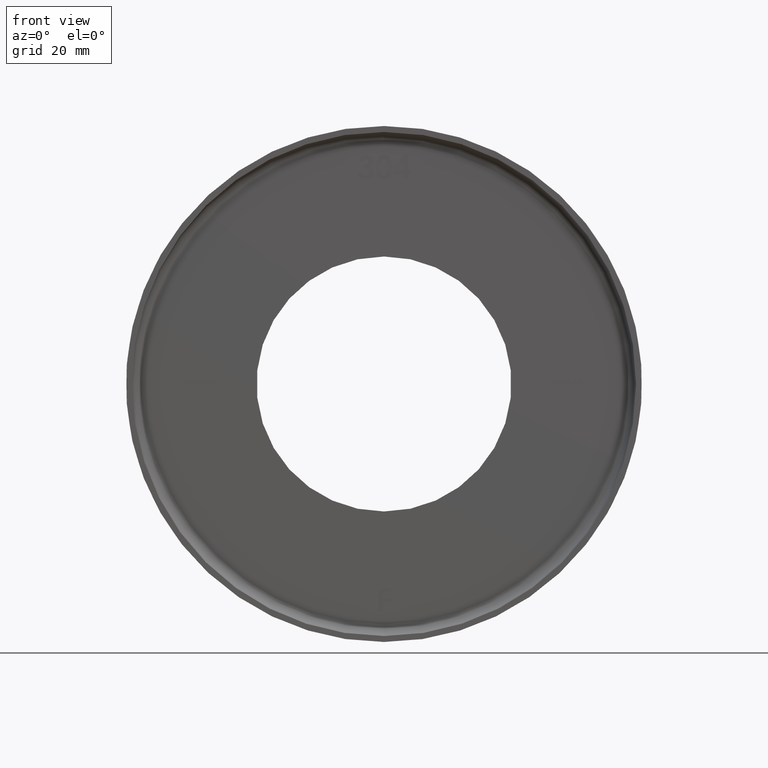
[diagram: clean part render]
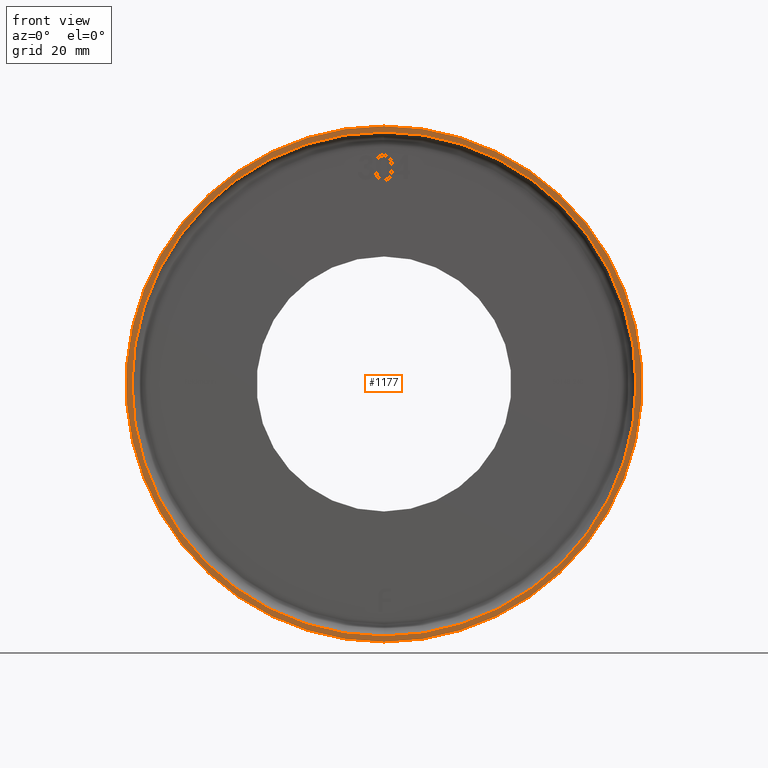
[diagram: same view with one face highlighted and labeled with its STEP entity id]
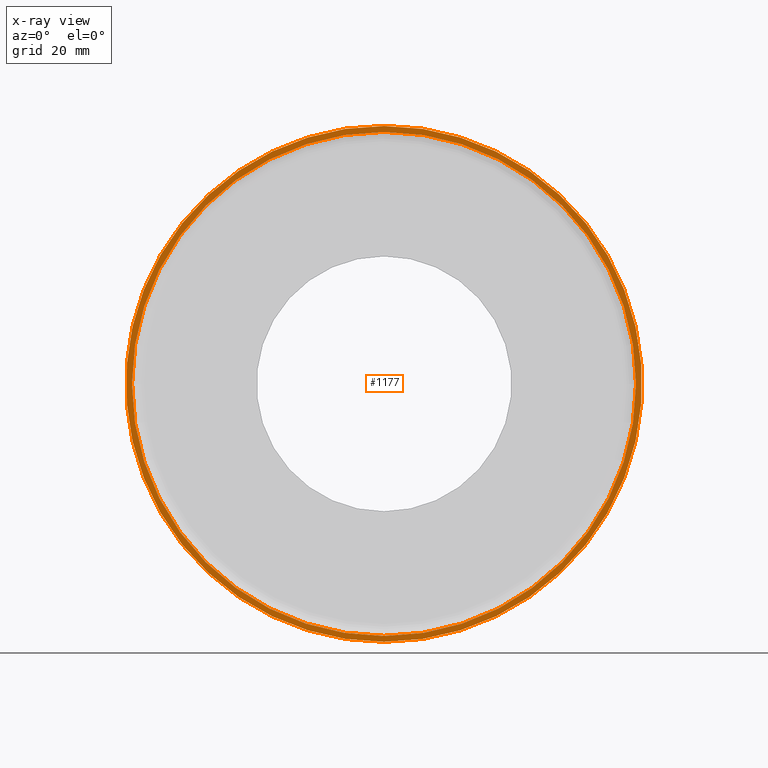
[diagram: x-ray of the same camera — body ghosted, the highlighted face saturated]
A machine part, front view. The second image highlights one B-rep face of the part: STEP entity #1177.
The next image is the same camera in x-ray: the body ghosted, the highlighted face saturated — about 0% of this face is hidden behind the body in this view.
In plain terms, the highlighted planar face has unit normal (0, -1, -0).
Its self-contained STEP definition (entity closure, byte-faithful):
#1177 = ADVANCED_FACE ( 'NONE', ( #12663, #10936 ), #5407, .T. ) ;
#2858 = AXIS2_PLACEMENT_3D ( 'NONE', #7783, #5459, #2999 ) ;
#2999 = DIRECTION ( 'NONE',  ( 0.000000000000000000, 0.000000000000000000, -1.000000000000000000 ) ) ;
#3377 = AXIS2_PLACEMENT_3D ( 'NONE', #13610, #11309, #13716 ) ;
#3752 = ORIENTED_EDGE ( 'NONE', *, *, #10366, .T. ) ;
#4119 = ORIENTED_EDGE ( 'NONE', *, *, #11313, .F. ) ;
#4429 = AXIS2_PLACEMENT_3D ( 'NONE', #7644, #14897, #5145 ) ;
#4939 = CARTESIAN_POINT ( 'NONE',  ( 5.204748896376250107E-15, -1.224646799147353207E-16, 42.49999999999999289 ) ) ;
#5145 = DIRECTION ( 'NONE',  ( 0.000000000000000000, 0.000000000000000000, -1.000000000000000000 ) ) ;
#5234 = VERTEX_POINT ( 'NONE', #4939 ) ;
#5242 = DIRECTION ( 'NONE',  ( 0.000000000000000000, 0.000000000000000000, -1.000000000000000000 ) ) ;
#5407 = PLANE ( 'NONE',  #11957 ) ;
#5459 = DIRECTION ( 'NONE',  ( -0.000000000000000000, -1.000000000000000000, -0.000000000000000000 ) ) ;
#6008 = EDGE_LOOP ( 'NONE', ( #3752, #6846 ) ) ;
#6246 = CIRCLE ( 'NONE', #3377, 42.49999999999999289 ) ;
#6846 = ORIENTED_EDGE ( 'NONE', *, *, #9629, .T. ) ;
#6854 = CARTESIAN_POINT ( 'NONE',  ( 0.000000000000000000, 0.000000000000000000, 0.000000000000000000 ) ) ;
#6909 = DIRECTION ( 'NONE',  ( -0.000000000000000000, -1.000000000000000000, -0.000000000000000000 ) ) ;
#7151 = CIRCLE ( 'NONE', #4429, 43.50000000000000000 ) ;
#7205 = EDGE_CURVE ( 'NONE', #5234, #7232, #6246, .T. ) ;
#7232 = VERTEX_POINT ( 'NONE', #14876 ) ;
#7277 = VERTEX_POINT ( 'NONE', #9145 ) ;
#7644 = CARTESIAN_POINT ( 'NONE',  ( 0.000000000000000000, 0.000000000000000000, 0.000000000000000000 ) ) ;
#7783 = CARTESIAN_POINT ( 'NONE',  ( 0.000000000000000000, -1.224646799147353207E-16, 0.000000000000000000 ) ) ;
#7880 = VERTEX_POINT ( 'NONE', #11847 ) ;
#8170 = DIRECTION ( 'NONE',  ( 0.000000000000000000, 0.000000000000000000, -1.000000000000000000 ) ) ;
#9145 = CARTESIAN_POINT ( 'NONE',  ( 0.000000000000000000, 0.000000000000000000, -43.50000000000000000 ) ) ;
#9629 = EDGE_CURVE ( 'NONE', #7880, #7277, #7151, .T. ) ;
#10366 = EDGE_CURVE ( 'NONE', #7277, #7880, #15254, .T. ) ;
#10796 = CIRCLE ( 'NONE', #2858, 42.49999999999999289 ) ;
#10936 = FACE_BOUND ( 'NONE', #11986, .T. ) ;
#11309 = DIRECTION ( 'NONE',  ( -0.000000000000000000, -1.000000000000000000, -0.000000000000000000 ) ) ;
#11313 = EDGE_CURVE ( 'NONE', #7232, #5234, #10796, .T. ) ;
#11424 = CARTESIAN_POINT ( 'NONE',  ( 42.49999999999999289, -6.123233995736766036E-17, 0.000000000000000000 ) ) ;
#11847 = CARTESIAN_POINT ( 'NONE',  ( 5.327213576290986044E-15, 0.000000000000000000, 43.50000000000000000 ) ) ;
#11957 = AXIS2_PLACEMENT_3D ( 'NONE', #11424, #12556, #5242 ) ;
#11986 = EDGE_LOOP ( 'NONE', ( #4119, #13173 ) ) ;
#12556 = DIRECTION ( 'NONE',  ( 0.000000000000000000, -1.000000000000000000, -0.000000000000000000 ) ) ;
#12663 = FACE_OUTER_BOUND ( 'NONE', #6008, .T. ) ;
#13173 = ORIENTED_EDGE ( 'NONE', *, *, #7205, .F. ) ;
#13610 = CARTESIAN_POINT ( 'NONE',  ( 0.000000000000000000, -1.224646799147353207E-16, 0.000000000000000000 ) ) ;
#13716 = DIRECTION ( 'NONE',  ( 0.000000000000000000, 0.000000000000000000, -1.000000000000000000 ) ) ;
#14876 = CARTESIAN_POINT ( 'NONE',  ( 0.000000000000000000, -1.224646799147353207E-16, -42.49999999999999289 ) ) ;
#14897 = DIRECTION ( 'NONE',  ( -0.000000000000000000, -1.000000000000000000, -0.000000000000000000 ) ) ;
#15254 = CIRCLE ( 'NONE', #15932, 43.50000000000000000 ) ;
#15932 = AXIS2_PLACEMENT_3D ( 'NONE', #6854, #6909, #8170 ) ;